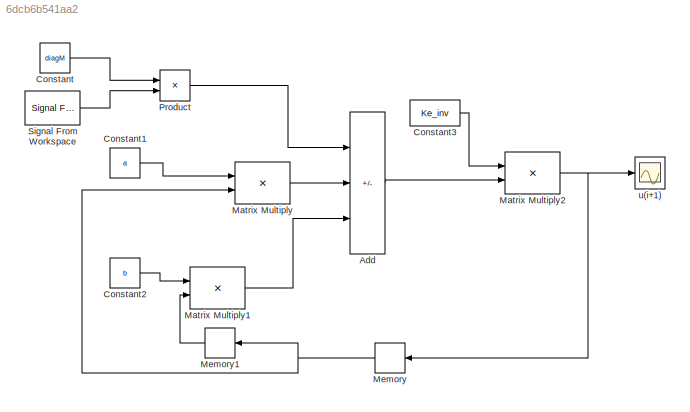
MODEL slx_6dcb6b541aa2
KIND model
CONFIG AbsTol = auto
CONFIG EnableMultiTasking = off
CONFIG FixedStep = 0.001
CONFIG MaxStep = auto
CONFIG MinStep = auto
CONFIG RelTol = 1e-3
CONFIG SampleTimeConstraint = Unconstrained
CONFIG SolverName = FixedStepAuto
CONFIG StartTime = 0.0
CONFIG StopTime = 55.0
BLOCK [Sum] Add
  IconShape = rectangular
  Inputs = ---
BLOCK [Constant] Constant
  Value = diagM
  VectorParams1D = off
BLOCK [Constant] Constant1
  Value = a
  VectorParams1D = off
BLOCK [Constant] Constant2
  Value = b
  VectorParams1D = off
BLOCK [Constant] Constant3
  Value = Ke_inv
  VectorParams1D = off
BLOCK [Product] Matrix Multiply
  Multiplication = Matrix(*)
BLOCK [Product] Matrix Multiply1
  Multiplication = Matrix(*)
BLOCK [Product] Matrix Multiply2
  Multiplication = Matrix(*)
BLOCK [Memory] Memory
  NameLocation = top
BLOCK [Memory] Memory1
  NameLocation = top
BLOCK [Product] Product
BLOCK [Reference] Signal From Workspace  REF=dspsrcs4/Signal From
Workspace
  SourceBlock = dspsrcs4/Signal From\nWorkspace
  SourceType = Signal From Workspace
BLOCK [Scope] u(i+1)
  Floating = off
  NumInputPorts = 1
  ScopeSpecificationString = Simulink.scopes.TimeScopeBlockCfg('CurrentConfiguration', extmgr.ConfigurationSet(extmgr.Configuration('Core','General UI',true),extmgr.Configuration('Core','Source UI',true),extmgr.Configuration('Sources','WiredSimulink',true),extmgr.Configuration('Visuals','Time Domain',true,'SerializedDisplays',{struct('MinYLimReal','-0.0009','MaxYLimReal','0.00064','YLabelReal','','MinYLimMag','0.00000','MaxYL...<+1385ch>
LINE Add:1 -> Matrix Multiply2:2
LINE Constant1:1 -> Matrix Multiply:1
LINE Constant2:1 -> Matrix Multiply1:1
LINE Constant3:1 -> Matrix Multiply2:1
LINE Constant:1 -> Product:1
LINE Matrix Multiply1:1 -> Add:3
NET Matrix Multiply2:1 -> Memory:1, u(i+1):1
LINE Matrix Multiply:1 -> Add:2
LINE Memory1:1 -> Matrix Multiply1:2
NET Memory:1 -> Matrix Multiply:2, Memory1:1
LINE Product:1 -> Add:1
LINE Signal From Workspace:1 -> Product:2
note: NET lines group one-source signal fan-out (src -> all destinations, sorted); 1:1 wires keep LINE
